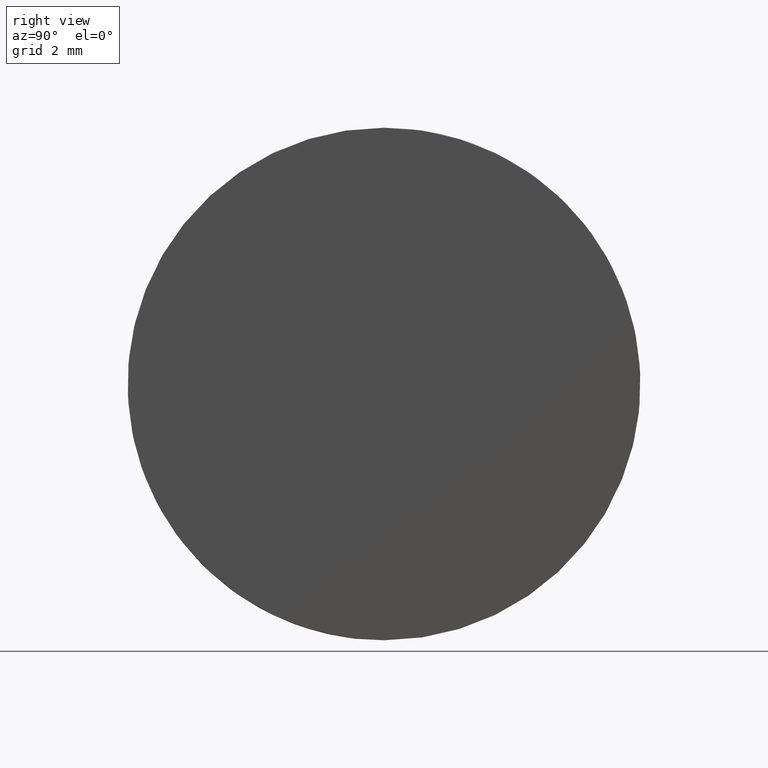
[diagram: clean part render]
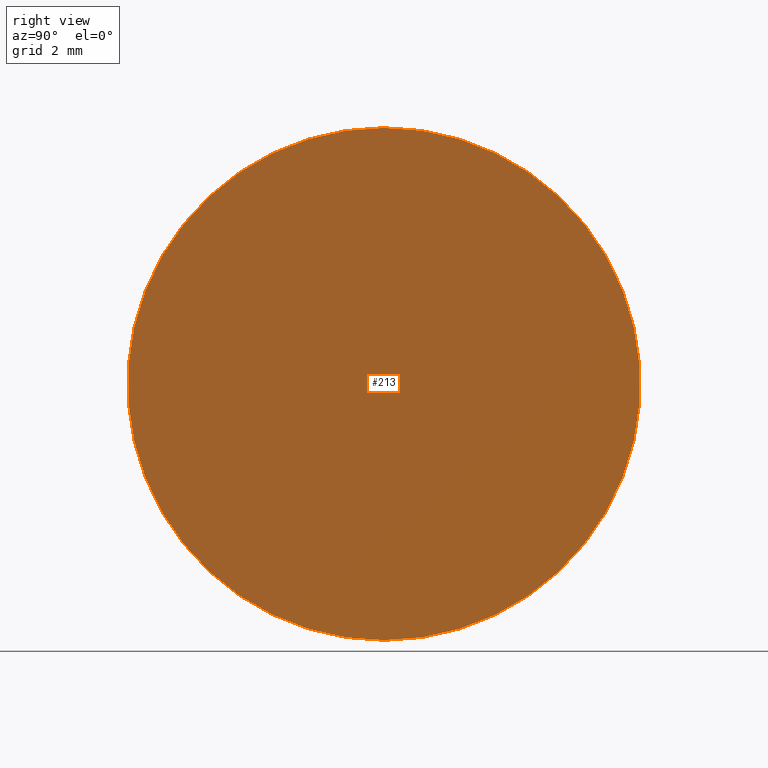
[diagram: same view with one face highlighted and labeled with its STEP entity id]
A machine part, right view. The second image highlights one B-rep face of the part: STEP entity #213.
In plain terms, the highlighted planar face has unit normal (1, 0, -0).
Its self-contained STEP definition (entity closure, byte-faithful):
#12 = DIRECTION ( 'NONE',  ( 0.0000000000000000000, 0.0000000000000000000, -1.000000000000000000 ) ) ;
#14 = DIRECTION ( 'NONE',  ( 1.000000000000000000, -4.930380657631323800E-032, -4.995092817331918400E-016 ) ) ;
#26 = AXIS2_PLACEMENT_3D ( 'NONE', #151, #14, #12 ) ;
#28 = DIRECTION ( 'NONE',  ( 1.000000000000000000, 0.0000000000000000000, -5.551115123125781700E-016 ) ) ;
#30 = PLANE ( 'NONE',  #143 ) ;
#38 = DIRECTION ( 'NONE',  ( -5.551115123125781700E-016, 0.0000000000000000000, -1.000000000000000000 ) ) ;
#59 = AXIS2_PLACEMENT_3D ( 'NONE', #134, #64, #142 ) ;
#64 = DIRECTION ( 'NONE',  ( 1.000000000000000000, -4.930380657631323800E-032, -4.995092817331918400E-016 ) ) ;
#65 = ORIENTED_EDGE ( 'NONE', *, *, #96, .T. ) ;
#81 = CIRCLE ( 'NONE', #26, 6.250000000000000000 ) ;
#94 = VERTEX_POINT ( 'NONE', #154 ) ;
#96 = EDGE_CURVE ( 'NONE', #107, #94, #191, .T. ) ;
#101 = ORIENTED_EDGE ( 'NONE', *, *, #150, .T. ) ;
#107 = VERTEX_POINT ( 'NONE', #178 ) ;
#119 = EDGE_LOOP ( 'NONE', ( #101, #65 ) ) ;
#134 = CARTESIAN_POINT ( 'NONE',  ( -39.06479566514873600, 6.250000000000000000, 1.648114737193214100E-014 ) ) ;
#142 = DIRECTION ( 'NONE',  ( 0.0000000000000000000, 0.0000000000000000000, -1.000000000000000000 ) ) ;
#143 = AXIS2_PLACEMENT_3D ( 'NONE', #214, #28, #38 ) ;
#150 = EDGE_CURVE ( 'NONE', #94, #107, #81, .T. ) ;
#151 = CARTESIAN_POINT ( 'NONE',  ( -39.06479566514873600, 6.250000000000000000, 1.648114737193214100E-014 ) ) ;
#154 = CARTESIAN_POINT ( 'NONE',  ( -39.06479566514873600, 6.250000000000000000, -6.249999999999984000 ) ) ;
#170 = FACE_OUTER_BOUND ( 'NONE', #119, .T. ) ;
#178 = CARTESIAN_POINT ( 'NONE',  ( -39.06479566514873600, 6.250000000000000900, 6.250000000000016900 ) ) ;
#191 = CIRCLE ( 'NONE', #59, 6.250000000000000000 ) ;
#213 = ADVANCED_FACE ( 'NONE', ( #170 ), #30, .T. ) ;
#214 = CARTESIAN_POINT ( 'NONE',  ( -39.06479566514874300, 12.50000000000000000, -6.250000000000001800 ) ) ;